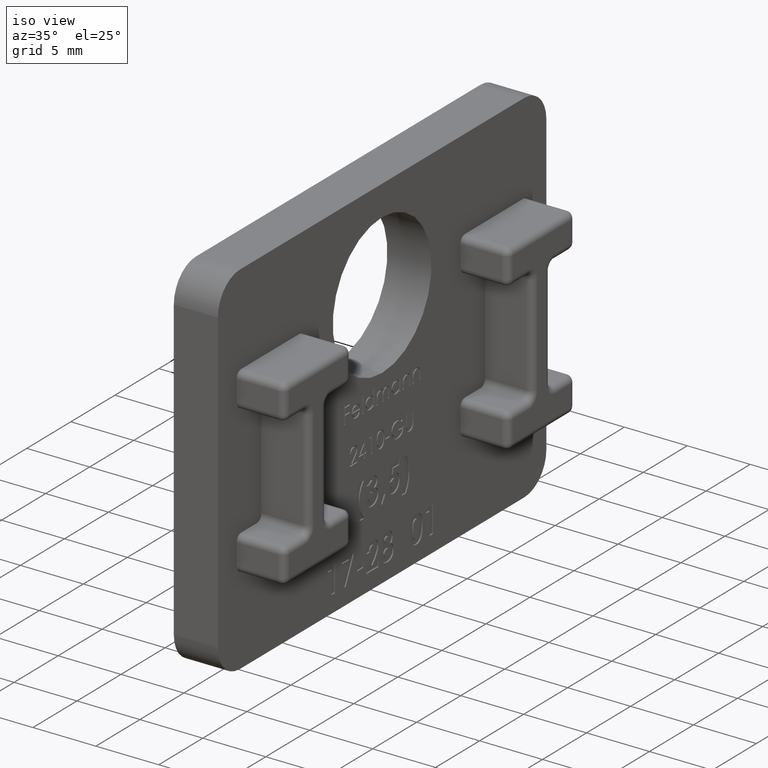
[diagram: clean part render]
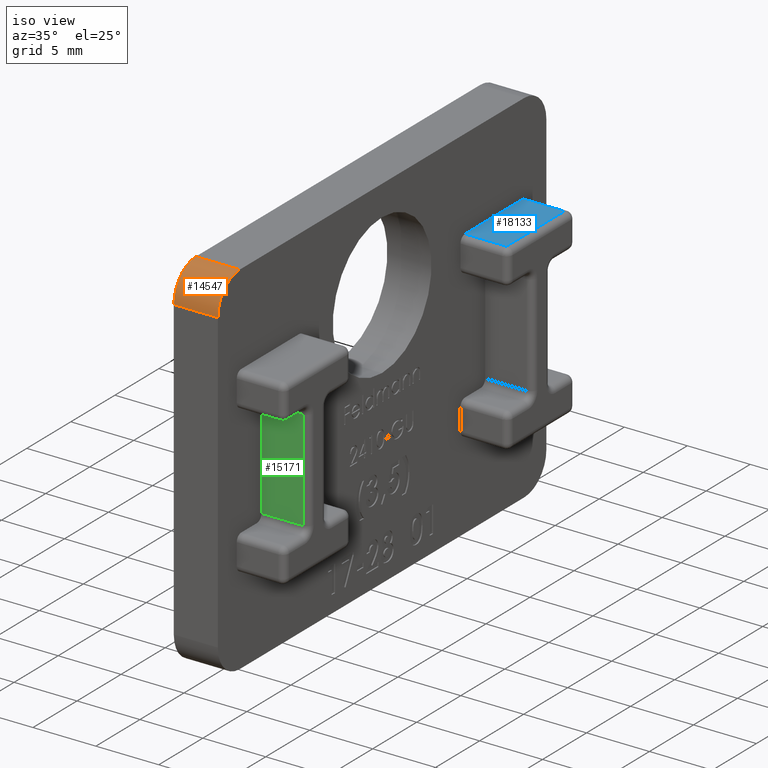
[diagram: same view with three faces highlighted in distinct colors, each labeled with its STEP entity id]
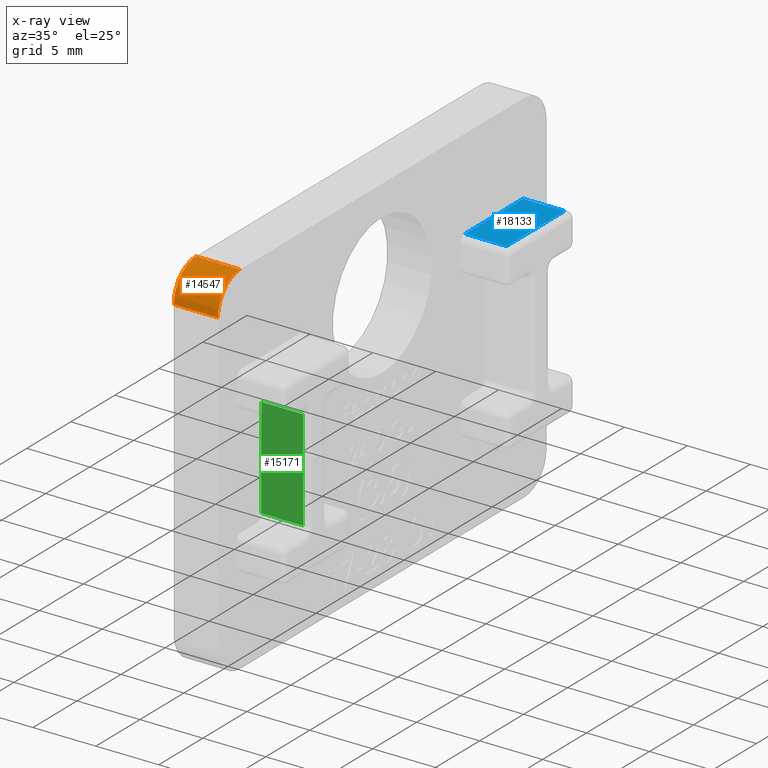
[diagram: x-ray of the same camera — body ghosted, the three highlighted faces saturated]
A machine part, iso view with three faces highlighted in distinct colors.
The next image is the same camera in x-ray (body ghosted, the three faces saturated) — at least one of them is partly hidden behind the body in this view.
Their STEP definitions:

[orange] entity #14547 — the highlighted cylindrical surface (partial cylindrical patch) has radius 2.5 mm, axis along (-1, 0, 0).
#4491 = DIRECTION ( 'NONE',  ( 1.000000000000000000, -0.000000000000000000, -0.000000000000000000 ) ) ;
#4656 = FACE_OUTER_BOUND ( 'NONE', #9184, .T. ) ;
#4939 = CYLINDRICAL_SURFACE ( 'NONE', #8075, 2.500000000000000444 ) ;
#4956 = VECTOR ( 'NONE', #4491, 1000.000000000000000 ) ;
#5810 = DIRECTION ( 'NONE',  ( -1.000000000000000000, 0.000000000000000000, 0.000000000000000000 ) ) ;
#5871 = CARTESIAN_POINT ( 'NONE',  ( -1.750000000000000000, -16.14999999999999858, 11.85000000000000142 ) ) ;
#6345 = LINE ( 'NONE', #7396, #21067 ) ;
#6812 = DIRECTION ( 'NONE',  ( 0.000000000000000000, 0.000000000000000000, 1.000000000000000000 ) ) ;
#7396 = CARTESIAN_POINT ( 'NONE',  ( 1.750000000000000000, -18.64999999999999503, 11.85000000000000142 ) ) ;
#7784 = DIRECTION ( 'NONE',  ( 0.000000000000000000, 0.000000000000000000, -1.000000000000000000 ) ) ;
#7809 = LINE ( 'NONE', #11631, #4956 ) ;
#8075 = AXIS2_PLACEMENT_3D ( 'NONE', #23373, #17883, #6812 ) ;
#9184 = EDGE_LOOP ( 'NONE', ( #9927, #18954, #11204, #19787 ) ) ;
#9927 = ORIENTED_EDGE ( 'NONE', *, *, #19825, .F. ) ;
#11204 = ORIENTED_EDGE ( 'NONE', *, *, #18741, .F. ) ;
#11485 = DIRECTION ( 'NONE',  ( -1.000000000000000000, -0.000000000000000000, -0.000000000000000000 ) ) ;
#11631 = CARTESIAN_POINT ( 'NONE',  ( 1.750000000000000000, -16.14999999999999503, 14.35000000000000142 ) ) ;
#11959 = VERTEX_POINT ( 'NONE', #23613 ) ;
#12207 = EDGE_CURVE ( 'NONE', #13760, #14788, #7809, .T. ) ;
#12992 = CARTESIAN_POINT ( 'NONE',  ( -1.750000000000000000, -16.14999999999999503, 14.35000000000000142 ) ) ;
#13760 = VERTEX_POINT ( 'NONE', #12992 ) ;
#14194 = AXIS2_PLACEMENT_3D ( 'NONE', #21701, #16424, #23777 ) ;
#14547 = ADVANCED_FACE ( 'NONE', ( #4656 ), #4939, .T. ) ;
#14788 = VERTEX_POINT ( 'NONE', #16597 ) ;
#14805 = EDGE_CURVE ( 'NONE', #21069, #11959, #6345, .T. ) ;
#14890 = CARTESIAN_POINT ( 'NONE',  ( 1.750000000000000000, -18.64999999999999503, 11.85000000000000142 ) ) ;
#15734 = CIRCLE ( 'NONE', #14194, 2.500000000000000444 ) ;
#16424 = DIRECTION ( 'NONE',  ( 1.000000000000000000, 0.000000000000000000, 0.000000000000000000 ) ) ;
#16597 = CARTESIAN_POINT ( 'NONE',  ( 1.750000000000000000, -16.14999999999999503, 14.35000000000000142 ) ) ;
#16626 = AXIS2_PLACEMENT_3D ( 'NONE', #5871, #11485, #7784 ) ;
#17883 = DIRECTION ( 'NONE',  ( -1.000000000000000000, 0.000000000000000000, 0.000000000000000000 ) ) ;
#18741 = EDGE_CURVE ( 'NONE', #11959, #13760, #20689, .T. ) ;
#18954 = ORIENTED_EDGE ( 'NONE', *, *, #12207, .F. ) ;
#19787 = ORIENTED_EDGE ( 'NONE', *, *, #14805, .F. ) ;
#19825 = EDGE_CURVE ( 'NONE', #14788, #21069, #15734, .T. ) ;
#20689 = CIRCLE ( 'NONE', #16626, 2.500000000000000444 ) ;
#21067 = VECTOR ( 'NONE', #5810, 1000.000000000000000 ) ;
#21069 = VERTEX_POINT ( 'NONE', #14890 ) ;
#21701 = CARTESIAN_POINT ( 'NONE',  ( 1.750000000000000000, -16.14999999999999858, 11.85000000000000142 ) ) ;
#23373 = CARTESIAN_POINT ( 'NONE',  ( 1.750000000000000000, -16.14999999999999858, 11.85000000000000142 ) ) ;
#23613 = CARTESIAN_POINT ( 'NONE',  ( -1.750000000000000000, -18.64999999999999503, 11.85000000000000142 ) ) ;
#23777 = DIRECTION ( 'NONE',  ( 0.000000000000000000, 0.000000000000000000, -1.000000000000000000 ) ) ;

[blue] entity #18133 — the highlighted planar face has unit normal (0, 0, -1).
#447 = VERTEX_POINT ( 'NONE', #13783 ) ;
#745 = DIRECTION ( 'NONE',  ( 0.000000000000000000, 0.000000000000000000, -1.000000000000000000 ) ) ;
#923 = LINE ( 'NONE', #7267, #10458 ) ;
#1536 = CARTESIAN_POINT ( 'NONE',  ( 5.050000000000000711, 9.399999999999998579, 7.150000000000000355 ) ) ;
#2127 = VECTOR ( 'NONE', #16284, 1000.000000000000000 ) ;
#2374 = PLANE ( 'NONE',  #22192 ) ;
#2722 = VECTOR ( 'NONE', #21287, 1000.000000000000000 ) ;
#3582 = DIRECTION ( 'NONE',  ( -0.000000000000000000, -1.000000000000000000, -0.000000000000000000 ) ) ;
#4069 = VERTEX_POINT ( 'NONE', #8092 ) ;
#5026 = EDGE_CURVE ( 'NONE', #7393, #447, #14274, .T. ) ;
#7267 = CARTESIAN_POINT ( 'NONE',  ( 1.750000000000000000, 8.899999999999998579, 7.150000000000000355 ) ) ;
#7393 = VERTEX_POINT ( 'NONE', #1536 ) ;
#8092 = CARTESIAN_POINT ( 'NONE',  ( 1.750000000000000000, 16.00000000000000000, 7.150000000000000355 ) ) ;
#8849 = ORIENTED_EDGE ( 'NONE', *, *, #9837, .T. ) ;
#9720 = ORIENTED_EDGE ( 'NONE', *, *, #11056, .T. ) ;
#9837 = EDGE_CURVE ( 'NONE', #18270, #7393, #11043, .T. ) ;
#10000 = ORIENTED_EDGE ( 'NONE', *, *, #5026, .T. ) ;
#10371 = VECTOR ( 'NONE', #12945, 1000.000000000000000 ) ;
#10458 = VECTOR ( 'NONE', #3582, 1000.000000000000000 ) ;
#11043 = LINE ( 'NONE', #18001, #2127 ) ;
#11056 = EDGE_CURVE ( 'NONE', #4069, #18270, #923, .T. ) ;
#12945 = DIRECTION ( 'NONE',  ( -1.000000000000000000, 0.000000000000000000, 0.000000000000000000 ) ) ;
#12958 = LINE ( 'NONE', #20530, #10371 ) ;
#13783 = CARTESIAN_POINT ( 'NONE',  ( 5.050000000000000711, 16.00000000000000000, 7.150000000000000355 ) ) ;
#13832 = EDGE_LOOP ( 'NONE', ( #8849, #10000, #21992, #9720 ) ) ;
#14087 = FACE_OUTER_BOUND ( 'NONE', #13832, .T. ) ;
#14274 = LINE ( 'NONE', #17416, #2722 ) ;
#14384 = CARTESIAN_POINT ( 'NONE',  ( 1.750000000000000000, 9.399999999999998579, 7.150000000000000355 ) ) ;
#15421 = CARTESIAN_POINT ( 'NONE',  ( 5.549999999999999822, 8.899999999999998579, 7.150000000000000355 ) ) ;
#15513 = EDGE_CURVE ( 'NONE', #447, #4069, #12958, .T. ) ;
#16284 = DIRECTION ( 'NONE',  ( 1.000000000000000000, -0.000000000000000000, -0.000000000000000000 ) ) ;
#17416 = CARTESIAN_POINT ( 'NONE',  ( 5.050000000000000711, 8.899999999999998579, 7.150000000000000355 ) ) ;
#18001 = CARTESIAN_POINT ( 'NONE',  ( 5.549999999999999822, 9.399999999999998579, 7.150000000000000355 ) ) ;
#18133 = ADVANCED_FACE ( 'NONE', ( #14087 ), #2374, .F. ) ;
#18270 = VERTEX_POINT ( 'NONE', #14384 ) ;
#20530 = CARTESIAN_POINT ( 'NONE',  ( 5.549999999999999822, 16.00000000000000000, 7.150000000000000355 ) ) ;
#21079 = DIRECTION ( 'NONE',  ( -1.000000000000000000, 0.000000000000000000, -0.000000000000000000 ) ) ;
#21287 = DIRECTION ( 'NONE',  ( -0.000000000000000000, 1.000000000000000000, -0.000000000000000000 ) ) ;
#21992 = ORIENTED_EDGE ( 'NONE', *, *, #15513, .T. ) ;
#22192 = AXIS2_PLACEMENT_3D ( 'NONE', #15421, #745, #21079 ) ;

[green] entity #15171 — the highlighted planar face has unit normal (0, -1, 0).
#360 = AXIS2_PLACEMENT_3D ( 'NONE', #17659, #10296, #23226 ) ;
#1524 = DIRECTION ( 'NONE',  ( -1.000000000000000000, 0.000000000000000000, 0.000000000000000000 ) ) ;
#1637 = CARTESIAN_POINT ( 'NONE',  ( 1.750000000000000000, -13.69999999999999929, 4.400000000000002132 ) ) ;
#1857 = DIRECTION ( 'NONE',  ( 0.000000000000000000, 1.927470528863118309E-16, 1.000000000000000000 ) ) ;
#2746 = PLANE ( 'NONE',  #360 ) ;
#3678 = VECTOR ( 'NONE', #1524, 1000.000000000000000 ) ;
#5275 = ORIENTED_EDGE ( 'NONE', *, *, #9455, .T. ) ;
#5879 = VECTOR ( 'NONE', #1857, 1000.000000000000000 ) ;
#7499 = LINE ( 'NONE', #1637, #19932 ) ;
#7913 = EDGE_CURVE ( 'NONE', #13325, #15875, #16738, .T. ) ;
#8176 = VERTEX_POINT ( 'NONE', #23343 ) ;
#8927 = CARTESIAN_POINT ( 'NONE',  ( 1.749999999999999778, -13.69999999999999929, 3.900000000000001688 ) ) ;
#9455 = EDGE_CURVE ( 'NONE', #15875, #8176, #22043, .T. ) ;
#10296 = DIRECTION ( 'NONE',  ( 0.000000000000000000, -1.000000000000000000, 1.927470528863118309E-16 ) ) ;
#10412 = VECTOR ( 'NONE', #18188, 1000.000000000000000 ) ;
#12338 = LINE ( 'NONE', #8927, #3678 ) ;
#12534 = EDGE_CURVE ( 'NONE', #13325, #16972, #7499, .T. ) ;
#13009 = CARTESIAN_POINT ( 'NONE',  ( 1.750000000000000000, -13.70000000000000107, -4.100000000000002309 ) ) ;
#13325 = VERTEX_POINT ( 'NONE', #13009 ) ;
#14540 = DIRECTION ( 'NONE',  ( 0.000000000000000000, 1.927470528863118062E-16, 1.000000000000000000 ) ) ;
#15171 = ADVANCED_FACE ( 'NONE', ( #23924 ), #2746, .T. ) ;
#15604 = EDGE_LOOP ( 'NONE', ( #16835, #5275, #15917, #17751 ) ) ;
#15825 = CARTESIAN_POINT ( 'NONE',  ( 1.750000000000000000, -13.69999999999999929, 3.900000000000001688 ) ) ;
#15875 = VERTEX_POINT ( 'NONE', #23748 ) ;
#15917 = ORIENTED_EDGE ( 'NONE', *, *, #17584, .T. ) ;
#16738 = LINE ( 'NONE', #21574, #10412 ) ;
#16835 = ORIENTED_EDGE ( 'NONE', *, *, #7913, .T. ) ;
#16972 = VERTEX_POINT ( 'NONE', #15825 ) ;
#17584 = EDGE_CURVE ( 'NONE', #8176, #16972, #12338, .T. ) ;
#17659 = CARTESIAN_POINT ( 'NONE',  ( 5.549999999999999822, -13.69999999999999929, 4.400000000000002132 ) ) ;
#17751 = ORIENTED_EDGE ( 'NONE', *, *, #12534, .F. ) ;
#18188 = DIRECTION ( 'NONE',  ( 1.000000000000000000, -0.000000000000000000, -0.000000000000000000 ) ) ;
#19932 = VECTOR ( 'NONE', #14540, 1000.000000000000000 ) ;
#21574 = CARTESIAN_POINT ( 'NONE',  ( 5.549999999999999822, -13.70000000000000107, -4.100000000000002309 ) ) ;
#22043 = LINE ( 'NONE', #23871, #5879 ) ;
#23226 = DIRECTION ( 'NONE',  ( 0.000000000000000000, -1.927470528863118309E-16, -1.000000000000000000 ) ) ;
#23343 = CARTESIAN_POINT ( 'NONE',  ( 5.050000000000000711, -13.69999999999999929, 3.900000000000001688 ) ) ;
#23748 = CARTESIAN_POINT ( 'NONE',  ( 5.050000000000000711, -13.70000000000000107, -4.100000000000002309 ) ) ;
#23871 = CARTESIAN_POINT ( 'NONE',  ( 5.050000000000000711, -13.69999999999999929, 3.900000000000001688 ) ) ;
#23924 = FACE_OUTER_BOUND ( 'NONE', #15604, .T. ) ;